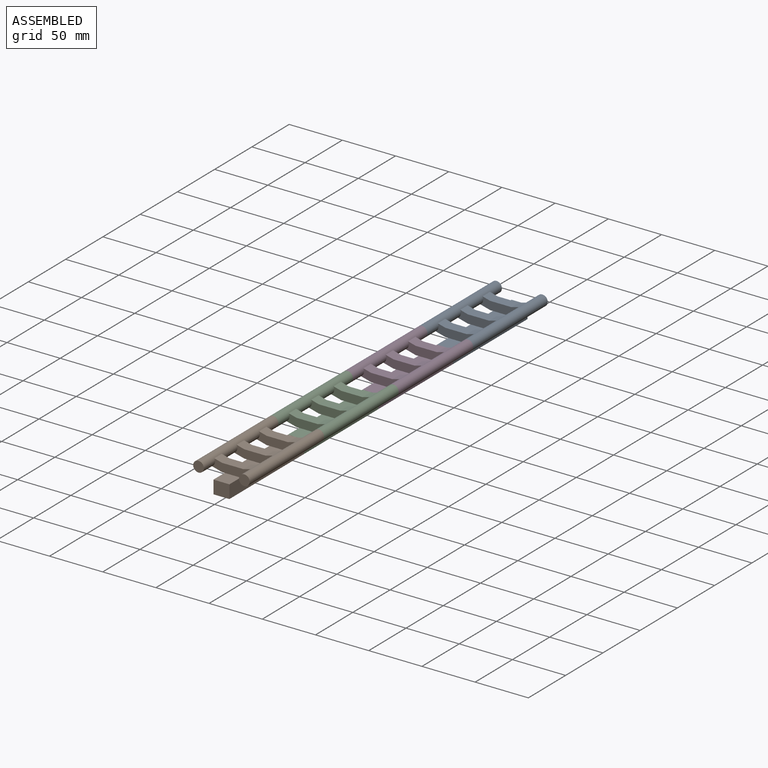
[diagram: assembled view]
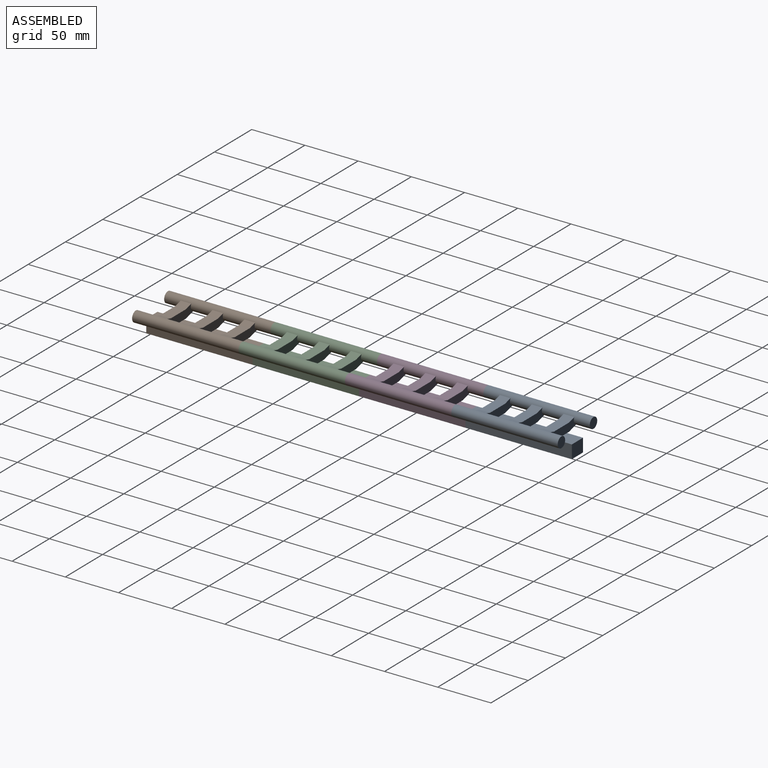
[diagram: assembled view, second angle]
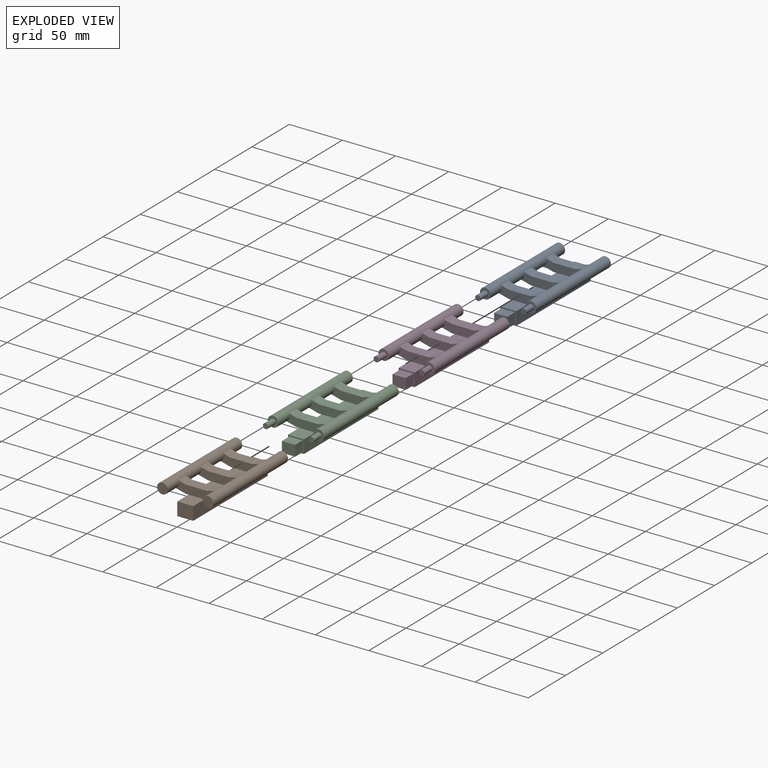
[diagram: exploded view]
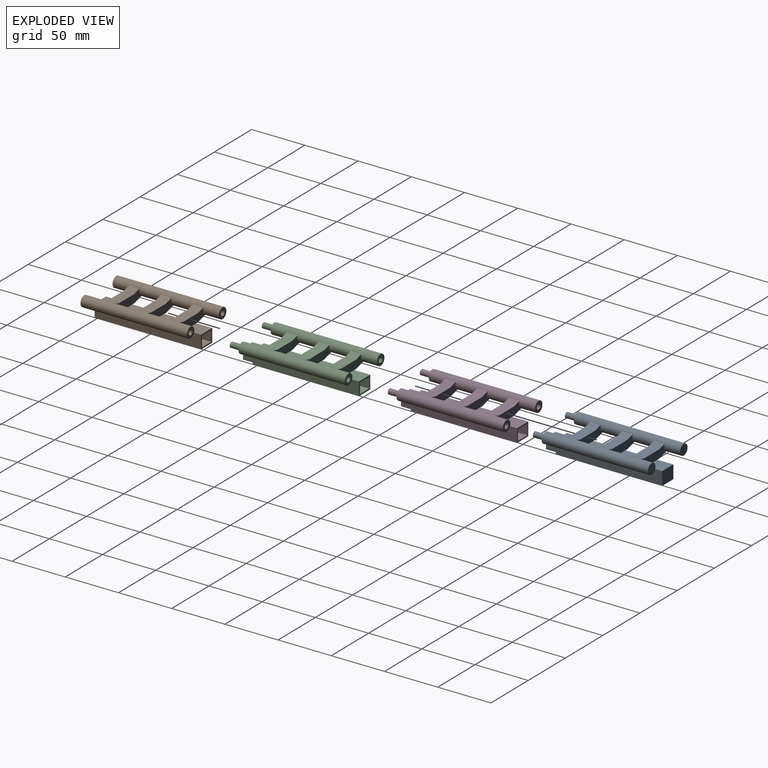
[diagram: exploded view, second angle]
ASSEMBLY  parts=4 mates=3
PART A: 51 faces, bbox 53x110x24.7 mm
  f0: plane 15x12.5mm, normal (0,-1,0), area 62.5mm2, adj f17,f18,f19,f20,f46,f47,f48,f49
  f1: plane 10x2.5mm, normal (0,0,-1), area 25mm2, adj f7,f8,f9,f18
  f2: plane 10x2.5mm, normal (0,0,-1), area 25mm2, adj f3,f8,f9,f20
  f3: plane 10x9.66mm, normal (0.26,0,-0.97), area 100mm2, adj f2,f8,f9,f11
  f4: plane 10x7.24mm, normal (-0.26,0,0.97), area 74.9mm2, adj f5,f8,f9,f11
  f5: plane 20x10mm, normal (0,0,1), area 200mm2, adj f4,f6,f8,f9
  f6: plane 10x7.24mm, normal (0.26,0,0.97), area 75mm2, adj f5,f8,f9,f12
  f7: plane 10x9.66mm, normal (-0.26,0,-0.97), area 100mm2, adj f1,f8,f9,f12
  f8: plane 39.32x9.81mm, normal (0,-1,0), area 271.9mm2, adj f1,f2,f3,f4,f5,f6,f7,f10
  f9: plane 39.32x9.81mm, normal (0,1,0), area 271.9mm2, adj f1,f2,f3,f4,f5,f6,f7,f11
  f10: plane 20x15mm, normal (0,0,1), area 300mm2, adj f8,f18,f20,f33
  f11: cylinder r=5mm len=100mm, axis (0,1,0), area 2881.7mm2, adj f3,f4,f8,f9,f24,f25,f27,f28
  f12: cylinder r=5mm len=100mm, axis (0,1,0), area 2881.7mm2, adj f6,f7,f8,f9,f13,f14,f30,f31
  f13: plane 10x10mm, normal (0,-1,0), area 58.9mm2, adj f12,f42
  f14: plane 10x10mm, normal (0,1,0), area 78.5mm2, adj f12
  f15: plane 20x15mm, normal (0,0,1), area 300mm2, adj f9,f18,f20,f40
  f16: plane 15x15mm, normal (0,0,1), area 225mm2, adj f18,f20,f21,f41
  f17: plane 15x15mm, normal (0,0,1), area 225mm2, adj f0,f18,f20,f32
  f18: plane 100x12.5mm, normal (-1,0,0), area 1250mm2, adj f0,f1,f10,f15,f16,f17,f19,f21
  f19: plane 100x15mm, normal (0,0,-1), area 1500mm2, adj f0,f18,f20,f21
  f20: plane 100x12.5mm, normal (1,0,0), area 1250mm2, adj f0,f2,f10,f15,f16,f17,f19,f21
  f21: plane 15x12.5mm, normal (0,1,0), area 187.5mm2, adj f16,f18,f19,f20
  f22: plane 10x2.5mm, normal (0,0,-1), area 25mm2, adj f20,f27,f32,f33
  f23: plane 10x2.5mm, normal (0,0,-1), area 25mm2, adj f20,f35,f40,f41
  f24: plane 10x10mm, normal (0,-1,0), area 58.9mm2, adj f11,f44
  f25: plane 10x10mm, normal (0,1,0), area 78.5mm2, adj f11
  f26: plane 10x2.5mm, normal (0,0,-1), area 25mm2, adj f18,f31,f32,f33
  f27: plane 10x9.66mm, normal (0.26,0,-0.97), area 100mm2, adj f11,f22,f32,f33
  f28: plane 10x7.24mm, normal (-0.26,0,0.97), area 74.9mm2, adj f11,f29,f32,f33
  f29: plane 20x10mm, normal (0,0,1), area 200mm2, adj f28,f30,f32,f33
  f30: plane 10x7.24mm, normal (0.26,0,0.97), area 75mm2, adj f12,f29,f32,f33
  f31: plane 10x9.66mm, normal (-0.26,0,-0.97), area 100mm2, adj f12,f26,f32,f33
  f32: plane 39.32x9.81mm, normal (0,-1,0), area 271.9mm2, adj f11,f12,f17,f22,f26,f27,f28,f29
  f33: plane 39.32x9.81mm, normal (0,1,0), area 271.9mm2, adj f10,f11,f12,f22,f26,f27,f28,f29
  f34: plane 10x2.5mm, normal (0,0,-1), area 25mm2, adj f18,f39,f40,f41
  f35: plane 10x9.66mm, normal (0.26,0,-0.97), area 100mm2, adj f11,f23,f40,f41
  f36: plane 10x7.24mm, normal (-0.26,0,0.97), area 74.9mm2, adj f11,f37,f40,f41
  f37: plane 20x10mm, normal (0,0,1), area 200mm2, adj f36,f38,f40,f41
  f38: plane 10x7.24mm, normal (0.26,0,0.97), area 75mm2, adj f12,f37,f40,f41
  f39: plane 10x9.66mm, normal (-0.26,0,-0.97), area 100mm2, adj f12,f34,f40,f41
  f40: plane 39.32x9.81mm, normal (0,-1,0), area 271.9mm2, adj f11,f12,f15,f23,f34,f35,f36,f37
  f41: plane 39.32x9.81mm, normal (0,1,0), area 271.9mm2, adj f11,f12,f16,f23,f34,f35,f36,f37
  f42: cylinder r=2.5mm len=10mm, axis (0,1,0), area 157.1mm2, adj f13,f43
  f43: plane 5x5mm, normal (0,-1,0), area 19.6mm2, adj f42
  f44: cylinder r=2.5mm len=10mm, axis (0,1,0), area 157.1mm2, adj f24,f45
  f45: plane 5x5mm, normal (0,-1,0), area 19.6mm2, adj f44
  f46: plane 10x10mm, normal (-1,0,0), area 100mm2, adj f0,f47,f49,f50
  f47: plane 12.5x10mm, normal (0,0,-1), area 125mm2, adj f0,f46,f48,f50
  f48: plane 10x10mm, normal (1,0,0), area 100mm2, adj f0,f47,f49,f50
  f49: plane 12.5x10mm, normal (0,0,1), area 125mm2, adj f0,f46,f48,f50
  f50: plane 12.5x10mm, normal (0,-1,0), area 125mm2, adj f46,f47,f48,f49
PART B: 51 faces, bbox 53x100x24.7 mm
  f0: plane 10x2.5mm, normal (0,0,-1), area 25mm2, adj f6,f7,f8,f17
  f1: plane 10x2.5mm, normal (0,0,-1), area 25mm2, adj f2,f7,f8,f19
  f2: plane 10x9.66mm, normal (0.26,0,-0.97), area 100mm2, adj f1,f7,f8,f10
  f3: plane 10x7.24mm, normal (-0.26,0,0.97), area 74.9mm2, adj f4,f7,f8,f10
  f4: plane 20x10mm, normal (0,0,1), area 200mm2, adj f3,f5,f7,f8
  f5: plane 10x7.24mm, normal (0.26,0,0.97), area 75mm2, adj f4,f7,f8,f11
  f6: plane 10x9.66mm, normal (-0.26,0,-0.97), area 100mm2, adj f0,f7,f8,f11
  f7: plane 39.32x9.81mm, normal (0,-1,0), area 271.9mm2, adj f0,f1,f2,f3,f4,f5,f6,f9
  f8: plane 39.32x9.81mm, normal (0,1,0), area 271.9mm2, adj f0,f1,f2,f3,f4,f5,f6,f10
  f9: plane 20x15mm, normal (0,0,1), area 300mm2, adj f7,f17,f19,f33
  f10: cylinder r=5mm len=100mm, axis (0,1,0), area 2881.7mm2, adj f2,f3,f7,f8,f24,f25,f27,f28
  f11: cylinder r=5mm len=100mm, axis (0,1,0), area 2881.7mm2, adj f5,f6,f7,f8,f12,f13,f30,f31
  f12: plane 10x10mm, normal (0,-1,0), area 58.9mm2, adj f11,f49
  f13: plane 10x10mm, normal (0,1,0), area 78.5mm2, adj f11
  f14: plane 20x15mm, normal (0,0,1), area 300mm2, adj f8,f17,f19,f40
  f15: plane 15x15mm, normal (0,0,1), area 225mm2, adj f17,f19,f21,f41
  f16: plane 15x15mm, normal (0,0,1), area 225mm2, adj f17,f19,f20,f32
  f17: plane 100x12.5mm, normal (-1,0,0), area 1250mm2, adj f0,f9,f14,f15,f16,f18,f20,f21
  f18: plane 100x15mm, normal (0,0,-1), area 1500mm2, adj f17,f19,f20,f21
  f19: plane 100x12.5mm, normal (1,0,0), area 1250mm2, adj f1,f9,f14,f15,f16,f18,f20,f21
  f20: plane 15x12.5mm, normal (0,-1,0), area 62.5mm2, adj f16,f17,f18,f19,f44,f45,f46,f47
  f21: plane 15x12.5mm, normal (0,1,0), area 187.5mm2, adj f15,f17,f18,f19
  f22: plane 10x2.5mm, normal (0,0,-1), area 25mm2, adj f19,f27,f32,f33
  f23: plane 10x2.5mm, normal (0,0,-1), area 25mm2, adj f19,f35,f40,f41
  f24: plane 10x10mm, normal (0,-1,0), area 58.9mm2, adj f10,f42
  f25: plane 10x10mm, normal (0,1,0), area 78.5mm2, adj f10
  f26: plane 10x2.5mm, normal (0,0,-1), area 25mm2, adj f17,f31,f32,f33
  f27: plane 10x9.66mm, normal (0.26,0,-0.97), area 100mm2, adj f10,f22,f32,f33
  f28: plane 10x7.24mm, normal (-0.26,0,0.97), area 74.9mm2, adj f10,f29,f32,f33
  f29: plane 20x10mm, normal (0,0,1), area 200mm2, adj f28,f30,f32,f33
  f30: plane 10x7.24mm, normal (0.26,0,0.97), area 75mm2, adj f11,f29,f32,f33
  f31: plane 10x9.66mm, normal (-0.26,0,-0.97), area 100mm2, adj f11,f26,f32,f33
  f32: plane 39.32x9.81mm, normal (0,-1,0), area 271.9mm2, adj f10,f11,f16,f22,f26,f27,f28,f29
  f33: plane 39.32x9.81mm, normal (0,1,0), area 271.9mm2, adj f9,f10,f11,f22,f26,f27,f28,f29
  f34: plane 10x2.5mm, normal (0,0,-1), area 25mm2, adj f17,f39,f40,f41
  f35: plane 10x9.66mm, normal (0.26,0,-0.97), area 100mm2, adj f10,f23,f40,f41
  f36: plane 10x7.24mm, normal (-0.26,0,0.97), area 74.9mm2, adj f10,f37,f40,f41
  f37: plane 20x10mm, normal (0,0,1), area 200mm2, adj f36,f38,f40,f41
  f38: plane 10x7.24mm, normal (0.26,0,0.97), area 75mm2, adj f11,f37,f40,f41
  f39: plane 10x9.66mm, normal (-0.26,0,-0.97), area 100mm2, adj f11,f34,f40,f41
  f40: plane 39.32x9.81mm, normal (0,-1,0), area 271.9mm2, adj f10,f11,f14,f23,f34,f35,f36,f37
  f41: plane 39.32x9.81mm, normal (0,1,0), area 271.9mm2, adj f10,f11,f15,f23,f34,f35,f36,f37
  f42: cylinder r=2.5mm len=10mm, axis (0,-1,0), area 157.1mm2, adj f24,f43
  f43: plane 5x5mm, normal (0,-1,0), area 19.6mm2, adj f42
  f44: plane 12.5x10mm, normal (0,0,1), area 125mm2, adj f20,f45,f47,f48
  f45: plane 10x10mm, normal (-1,0,0), area 100mm2, adj f20,f44,f46,f48
  f46: plane 12.5x10mm, normal (0,0,-1), area 125mm2, adj f20,f45,f47,f48
  f47: plane 10x10mm, normal (1,0,0), area 100mm2, adj f20,f44,f46,f48
  f48: plane 12.5x10mm, normal (0,-1,0), area 125mm2, adj f44,f45,f46,f47
  f49: cylinder r=2.5mm len=10mm, axis (0,-1,0), area 157.1mm2, adj f12,f50
  f50: plane 5x5mm, normal (0,-1,0), area 19.6mm2, adj f49
PART C: 60 faces, bbox 53x110x24.7 mm
  f0: plane 15x12.5mm, normal (0,1,0), area 62.5mm2, adj f16,f18,f19,f20,f53,f54,f55,f56
  f1: plane 10x2.5mm, normal (0,0,-1), area 25mm2, adj f7,f8,f9,f18
  f2: plane 10x2.5mm, normal (0,0,-1), area 25mm2, adj f3,f8,f9,f20
  f3: plane 10x9.66mm, normal (0.26,0,-0.97), area 100mm2, adj f2,f8,f9,f11
  f4: plane 10x7.24mm, normal (-0.26,0,0.97), area 74.9mm2, adj f5,f8,f9,f11
  f5: plane 20x10mm, normal (0,0,1), area 200mm2, adj f4,f6,f8,f9
  f6: plane 10x7.24mm, normal (0.26,0,0.97), area 75mm2, adj f5,f8,f9,f12
  f7: plane 10x9.66mm, normal (-0.26,0,-0.97), area 100mm2, adj f1,f8,f9,f12
  f8: plane 39.32x9.81mm, normal (0,-1,0), area 271.9mm2, adj f1,f2,f3,f4,f5,f6,f7,f10
  f9: plane 39.32x9.81mm, normal (0,1,0), area 271.9mm2, adj f1,f2,f3,f4,f5,f6,f7,f11
  f10: plane 20x15mm, normal (0,0,1), area 300mm2, adj f8,f18,f20,f33
  f11: cylinder r=5mm len=100mm, axis (0,1,0), area 2881.7mm2, adj f3,f4,f8,f9,f24,f25,f27,f28
  f12: cylinder r=5mm len=100mm, axis (0,1,0), area 2881.7mm2, adj f6,f7,f8,f9,f13,f14,f30,f31
  f13: plane 10x10mm, normal (0,-1,0), area 58.9mm2, adj f12,f49
  f14: plane 10x10mm, normal (0,1,0), area 58.9mm2, adj f12,f51
  f15: plane 20x15mm, normal (0,0,1), area 300mm2, adj f9,f18,f20,f40
  f16: plane 15x15mm, normal (0,0,1), area 225mm2, adj f0,f18,f20,f41
  f17: plane 15x15mm, normal (0,0,1), area 225mm2, adj f18,f20,f21,f32
  f18: plane 100x12.5mm, normal (-1,0,0), area 1250mm2, adj f0,f1,f10,f15,f16,f17,f19,f21
  f19: plane 100x15mm, normal (0,0,-1), area 1500mm2, adj f0,f18,f20,f21
  f20: plane 100x12.5mm, normal (1,0,0), area 1250mm2, adj f0,f2,f10,f15,f16,f17,f19,f21
  f21: plane 15x12.5mm, normal (0,-1,0), area 62.5mm2, adj f17,f18,f19,f20,f44,f45,f46,f47
  f22: plane 10x2.5mm, normal (0,0,-1), area 25mm2, adj f20,f27,f32,f33
  f23: plane 10x2.5mm, normal (0,0,-1), area 25mm2, adj f20,f35,f40,f41
  f24: plane 10x10mm, normal (0,-1,0), area 58.9mm2, adj f11,f42
  f25: plane 10x10mm, normal (0,1,0), area 58.9mm2, adj f11,f58
  f26: plane 10x2.5mm, normal (0,0,-1), area 25mm2, adj f18,f31,f32,f33
  f27: plane 10x9.66mm, normal (0.26,0,-0.97), area 100mm2, adj f11,f22,f32,f33
  f28: plane 10x7.24mm, normal (-0.26,0,0.97), area 74.9mm2, adj f11,f29,f32,f33
  f29: plane 20x10mm, normal (0,0,1), area 200mm2, adj f28,f30,f32,f33
  f30: plane 10x7.24mm, normal (0.26,0,0.97), area 75mm2, adj f12,f29,f32,f33
  f31: plane 10x9.66mm, normal (-0.26,0,-0.97), area 100mm2, adj f12,f26,f32,f33
  f32: plane 39.32x9.81mm, normal (0,-1,0), area 271.9mm2, adj f11,f12,f17,f22,f26,f27,f28,f29
  f33: plane 39.32x9.81mm, normal (0,1,0), area 271.9mm2, adj f10,f11,f12,f22,f26,f27,f28,f29
  f34: plane 10x2.5mm, normal (0,0,-1), area 25mm2, adj f18,f39,f40,f41
  f35: plane 10x9.66mm, normal (0.26,0,-0.97), area 100mm2, adj f11,f23,f40,f41
  f36: plane 10x7.24mm, normal (-0.26,0,0.97), area 74.9mm2, adj f11,f37,f40,f41
  f37: plane 20x10mm, normal (0,0,1), area 200mm2, adj f36,f38,f40,f41
  f38: plane 10x7.24mm, normal (0.26,0,0.97), area 75mm2, adj f12,f37,f40,f41
  f39: plane 10x9.66mm, normal (-0.26,0,-0.97), area 100mm2, adj f12,f34,f40,f41
  f40: plane 39.32x9.81mm, normal (0,-1,0), area 271.9mm2, adj f11,f12,f15,f23,f34,f35,f36,f37
  f41: plane 39.32x9.81mm, normal (0,1,0), area 271.9mm2, adj f11,f12,f16,f23,f34,f35,f36,f37
  f42: cylinder r=2.5mm len=10mm, axis (0,-1,0), area 157.1mm2, adj f24,f43
  f43: plane 5x5mm, normal (0,-1,0), area 19.6mm2, adj f42
  f44: plane 12.5x10mm, normal (0,0,1), area 125mm2, adj f21,f45,f47,f48
  f45: plane 10x10mm, normal (-1,0,0), area 100mm2, adj f21,f44,f46,f48
  f46: plane 12.5x10mm, normal (0,0,-1), area 125mm2, adj f21,f45,f47,f48
  f47: plane 10x10mm, normal (1,0,0), area 100mm2, adj f21,f44,f46,f48
  f48: plane 12.5x10mm, normal (0,-1,0), area 125mm2, adj f44,f45,f46,f47
  f49: cylinder r=2.5mm len=10mm, axis (0,-1,0), area 157.1mm2, adj f13,f50
  f50: plane 5x5mm, normal (0,-1,0), area 19.6mm2, adj f49
  f51: cylinder r=2.5mm len=10mm, axis (0,-1,0), area 157.1mm2, adj f14,f52
  f52: plane 5x5mm, normal (0,1,0), area 19.6mm2, adj f51
  f53: plane 12.5x10mm, normal (0,0,-1), area 125mm2, adj f0,f54,f56,f57
  f54: plane 10x10mm, normal (-1,0,0), area 100mm2, adj f0,f53,f55,f57
  f55: plane 12.5x10mm, normal (0,0,1), area 125mm2, adj f0,f54,f56,f57
  f56: plane 10x10mm, normal (1,0,0), area 100mm2, adj f0,f53,f55,f57
  f57: plane 12.5x10mm, normal (0,1,0), area 125mm2, adj f53,f54,f55,f56
  f58: cylinder r=2.5mm len=10mm, axis (0,-1,0), area 157.1mm2, adj f25,f59
  f59: plane 5x5mm, normal (0,1,0), area 19.6mm2, adj f58
PART D: same geometry as C
PLACE A t=(41.82,53.93,26.92)mm
PLACE B rot(axis=(0,0,1),180deg) t=(65.77,-246.07,26.88)mm
PLACE C rot(axis=(0,0,1),180deg) t=(65.79,-146.07,26.9)mm
PLACE D rot(axis=(0,0,1),180deg) t=(65.8,-46.07,26.92)mm
MATE fastened C.f48 <-> D.f57  axis (0,1,0) through (53.8,-106.07,20.65)mm
MATE fastened D.f48 <-> A.f50  axis (0,1,0) through (53.81,-6.07,20.67)mm
MATE fastened B.f48 <-> C.f57  axis (0,1,0) through (53.78,-206.07,20.63)mm
